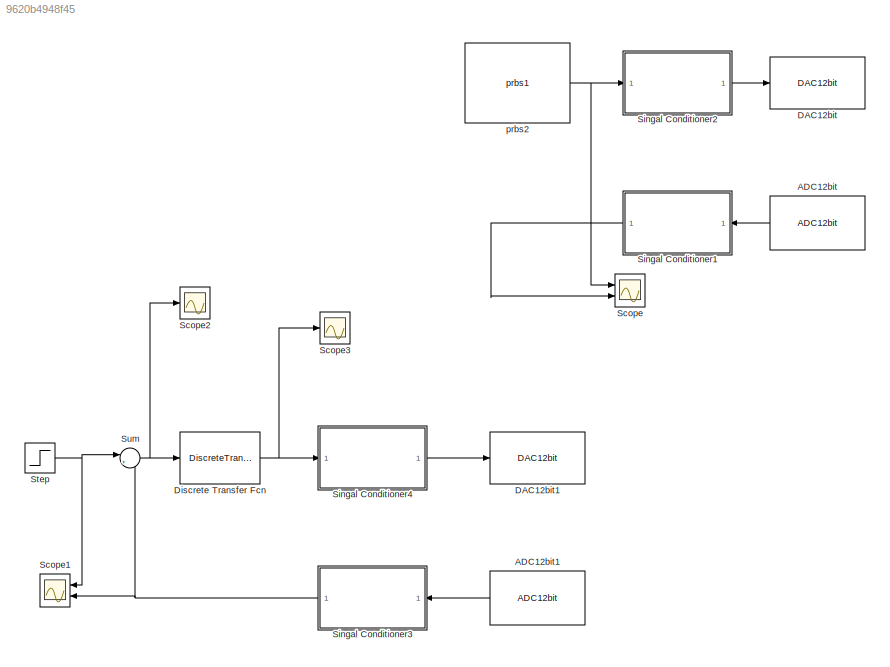
MODEL slx_9620b4948f45
KIND model
CONFIG AbsTol = 1e-8
CONFIG EnableMultiTasking = on
CONFIG FixedStep = Ts
CONFIG MaxStep = auto
CONFIG MinStep = auto
CONFIG RelTol = 1e-8
CONFIG SampleTimeConstraint = Unconstrained
CONFIG Solver = FixedStepAuto
CONFIG SolverName = FixedStepAuto
CONFIG StartTime = 0.0
CONFIG StopTime = 50
BLOCK [Reference] ADC12bit  REF=EEE481Arduino/ADC12bit
  Commented = on
  Ports = [0, 1]
  SourceBlock = EEE481Arduino/ADC12bit
  SourceProductName = EEE 481 Arduino
BLOCK [Reference] ADC12bit1  REF=EEE481Arduino/ADC12bit
  Ports = [0, 1]
  SourceBlock = EEE481Arduino/ADC12bit
  SourceProductName = EEE 481 Arduino
BLOCK [Reference] DAC12bit  REF=EEE481Arduino/DAC12bit
  Commented = on
  Ports = [1]
  SourceBlock = EEE481Arduino/DAC12bit
  SourceProductName = EEE 481 Arduino
BLOCK [Reference] DAC12bit1  REF=EEE481Arduino/DAC12bit
  Ports = [1]
  SourceBlock = EEE481Arduino/DAC12bit
  SourceProductName = EEE 481 Arduino
BLOCK [DiscreteTransferFcn] Discrete Transfer Fcn
  Denominator = [1 -1 0]
  InputPortMap = u0
  Numerator = [36680 -71510 34850]
  Ports = [1, 1]
BLOCK [Scope] Scope
  Commented = on
  Floating = off
  NumInputPorts = 2
  Ports = [2]
  ScopeSpecificationString = Simulink.scopes.TimeScopeBlockCfg('CurrentConfiguration', extmgr.ConfigurationSet(extmgr.Configuration('Core','General UI',true),extmgr.Configuration('Core','Source UI',true),extmgr.Configuration('Sources','WiredSimulink',true,'DataLogging',true,'DataLoggingSaveFormat','StructureWithTime'),extmgr.Configuration('Visuals','Time Domain',true,'SerializedDisplays',{struct('MinYLimReal','-318.75','MaxYL...<+1450ch>
BLOCK [Scope] Scope1
  Floating = off
  NumInputPorts = 2
  Ports = [2]
  ScopeSpecificationString = Simulink.scopes.TimeScopeBlockCfg('CurrentConfiguration', extmgr.ConfigurationSet(extmgr.Configuration('Core','General UI',true),extmgr.Configuration('Core','Source UI',true),extmgr.Configuration('Sources','WiredSimulink',true,'DataLoggingVariableName','ScopeData1'),extmgr.Configuration('Visuals','Time Domain',true,'SerializedDisplays',{struct('MinYLimReal','0.08399','MaxYLimReal','0.65834','YLabe...<+1454ch>
BLOCK [Scope] Scope2
  Floating = off
  NumInputPorts = 1
  Ports = [1]
  ScopeSpecificationString = Simulink.scopes.TimeScopeBlockCfg('CurrentConfiguration', extmgr.ConfigurationSet(extmgr.Configuration('Core','General UI',true),extmgr.Configuration('Core','Source UI',true),extmgr.Configuration('Sources','WiredSimulink',true,'DataLoggingVariableName','ScopeData2'),extmgr.Configuration('Visuals','Time Domain',true,'SerializedDisplays',{struct('MinYLimReal','-0.55089','MaxYLimReal','1.95347','YLab...<+1389ch>
BLOCK [Scope] Scope3
  Floating = off
  NumInputPorts = 1
  Ports = [1]
  ScopeSpecificationString = Simulink.scopes.TimeScopeBlockCfg('CurrentConfiguration', extmgr.ConfigurationSet(extmgr.Configuration('Core','General UI',true),extmgr.Configuration('Core','Source UI',true),extmgr.Configuration('Sources','WiredSimulink',true,'DataLoggingVariableName','ScopeData3'),extmgr.Configuration('Visuals','Time Domain',true,'SerializedDisplays',{struct('MinYLimReal','-8097.21696','MaxYLimReal','23752.29013...<+1452ch>
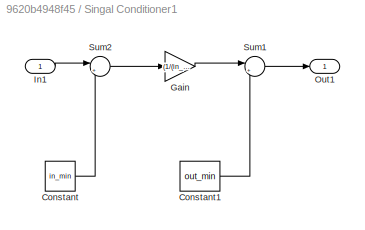
BLOCK [SubSystem] Singal Conditioner1
  Commented = on
  Ports = [1, 1]
  RequestExecContextInheritance = off
BLOCK [Constant] Singal Conditioner1/Constant
  Value = in_min
BLOCK [Constant] Singal Conditioner1/Constant1
  Value = out_min
BLOCK [Gain] Singal Conditioner1/Gain
  Gain = (1/(in_max-in_min))*(out_max-out_min)
  OutDataTypeStr = Inherit: Inherit via internal rule
  ParamDataTypeStr = Inherit: Inherit via internal rule
  SaturateOnIntegerOverflow = off
BLOCK [Inport] Singal Conditioner1/In1
  IconDisplay = Port number
BLOCK [Outport] Singal Conditioner1/Out1
  IconDisplay = Port number
BLOCK [Sum] Singal Conditioner1/Sum1
  IconShape = round
  InputSameDT = off
  Inputs = |++
  OutDataTypeStr = Inherit: Inherit via internal rule
  Ports = [2, 1]
  SaturateOnIntegerOverflow = off
BLOCK [Sum] Singal Conditioner1/Sum2
  IconShape = round
  InputSameDT = off
  Inputs = |+-
  OutDataTypeStr = Inherit: Inherit via internal rule
  Ports = [2, 1]
  SaturateOnIntegerOverflow = off
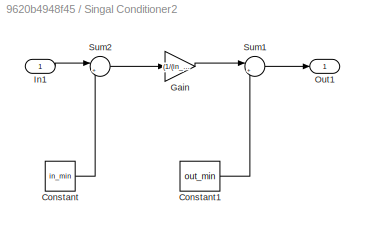
BLOCK [SubSystem] Singal Conditioner2
  Commented = on
  Ports = [1, 1]
  RequestExecContextInheritance = off
BLOCK [Constant] Singal Conditioner2/Constant
  Value = in_min
BLOCK [Constant] Singal Conditioner2/Constant1
  Value = out_min
BLOCK [Gain] Singal Conditioner2/Gain
  Gain = (1/(in_max-in_min))*(out_max-out_min)
  OutDataTypeStr = Inherit: Inherit via internal rule
  ParamDataTypeStr = Inherit: Inherit via internal rule
  SaturateOnIntegerOverflow = off
BLOCK [Inport] Singal Conditioner2/In1
  IconDisplay = Port number
BLOCK [Outport] Singal Conditioner2/Out1
  IconDisplay = Port number
BLOCK [Sum] Singal Conditioner2/Sum1
  IconShape = round
  InputSameDT = off
  Inputs = |++
  OutDataTypeStr = Inherit: Inherit via internal rule
  Ports = [2, 1]
  SaturateOnIntegerOverflow = off
BLOCK [Sum] Singal Conditioner2/Sum2
  IconShape = round
  InputSameDT = off
  Inputs = |+-
  OutDataTypeStr = Inherit: Inherit via internal rule
  Ports = [2, 1]
  SaturateOnIntegerOverflow = off
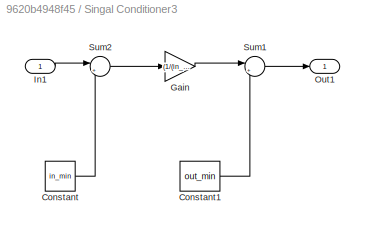
BLOCK [SubSystem] Singal Conditioner3
  Ports = [1, 1]
  RequestExecContextInheritance = off
BLOCK [Constant] Singal Conditioner3/Constant
  Value = in_min
BLOCK [Constant] Singal Conditioner3/Constant1
  Value = out_min
BLOCK [Gain] Singal Conditioner3/Gain
  Gain = (1/(in_max-in_min))*(out_max-out_min)
  OutDataTypeStr = Inherit: Inherit via internal rule
  ParamDataTypeStr = Inherit: Inherit via internal rule
  SaturateOnIntegerOverflow = off
BLOCK [Inport] Singal Conditioner3/In1
  IconDisplay = Port number
BLOCK [Outport] Singal Conditioner3/Out1
  IconDisplay = Port number
BLOCK [Sum] Singal Conditioner3/Sum1
  IconShape = round
  InputSameDT = off
  Inputs = |++
  OutDataTypeStr = Inherit: Inherit via internal rule
  Ports = [2, 1]
  SaturateOnIntegerOverflow = off
BLOCK [Sum] Singal Conditioner3/Sum2
  IconShape = round
  InputSameDT = off
  Inputs = |+-
  OutDataTypeStr = Inherit: Inherit via internal rule
  Ports = [2, 1]
  SaturateOnIntegerOverflow = off
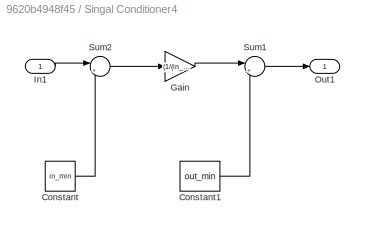
BLOCK [SubSystem] Singal Conditioner4
  Ports = [1, 1]
  RequestExecContextInheritance = off
BLOCK [Constant] Singal Conditioner4/Constant
  Value = in_min
BLOCK [Constant] Singal Conditioner4/Constant1
  Value = out_min
BLOCK [Gain] Singal Conditioner4/Gain
  Gain = (1/(in_max-in_min))*(out_max-out_min)
  OutDataTypeStr = Inherit: Inherit via internal rule
  ParamDataTypeStr = Inherit: Inherit via internal rule
  SaturateOnIntegerOverflow = off
BLOCK [Inport] Singal Conditioner4/In1
  IconDisplay = Port number
BLOCK [Outport] Singal Conditioner4/Out1
  IconDisplay = Port number
BLOCK [Sum] Singal Conditioner4/Sum1
  IconShape = round
  InputSameDT = off
  Inputs = |++
  OutDataTypeStr = Inherit: Inherit via internal rule
  Ports = [2, 1]
  SaturateOnIntegerOverflow = off
BLOCK [Sum] Singal Conditioner4/Sum2
  IconShape = round
  InputSameDT = off
  Inputs = |+-
  OutDataTypeStr = Inherit: Inherit via internal rule
  Ports = [2, 1]
  SaturateOnIntegerOverflow = off
BLOCK [Step] Step
  After = pi/6
  SampleTime = Ts
  Time = 25
BLOCK [Sum] Sum
  IconShape = round
  InputSameDT = off
  Inputs = |+-
  OutDataTypeStr = Inherit: Inherit via internal rule
  Ports = [2, 1]
  SaturateOnIntegerOverflow = off
BLOCK [Reference] prbs2  REF=EEE481Arduino/prbs1
  Commented = on
  Ports = [0, 1]
  SourceBlock = EEE481Arduino/prbs1
  SourceProductName = EEE 481 Arduino
LINE ADC12bit1:1 -> Singal Conditioner3:1
LINE ADC12bit:1 -> Singal Conditioner1:1
NET Discrete Transfer Fcn:1 -> Scope3:1, Singal Conditioner4:1
LINE Singal Conditioner1/Constant1:1 -> Singal Conditioner1/Sum1:2
LINE Singal Conditioner1/Constant:1 -> Singal Conditioner1/Sum2:2
LINE Singal Conditioner1/Gain:1 -> Singal Conditioner1/Sum1:1
LINE Singal Conditioner1/In1:1 -> Singal Conditioner1/Sum2:1
LINE Singal Conditioner1/Sum1:1 -> Singal Conditioner1/Out1:1
LINE Singal Conditioner1/Sum2:1 -> Singal Conditioner1/Gain:1
LINE Singal Conditioner1:1 -> Scope:2
LINE Singal Conditioner2/Constant1:1 -> Singal Conditioner2/Sum1:2
LINE Singal Conditioner2/Constant:1 -> Singal Conditioner2/Sum2:2
LINE Singal Conditioner2/Gain:1 -> Singal Conditioner2/Sum1:1
LINE Singal Conditioner2/In1:1 -> Singal Conditioner2/Sum2:1
LINE Singal Conditioner2/Sum1:1 -> Singal Conditioner2/Out1:1
LINE Singal Conditioner2/Sum2:1 -> Singal Conditioner2/Gain:1
LINE Singal Conditioner2:1 -> DAC12bit:1
LINE Singal Conditioner3/Constant1:1 -> Singal Conditioner3/Sum1:2
LINE Singal Conditioner3/Constant:1 -> Singal Conditioner3/Sum2:2
LINE Singal Conditioner3/Gain:1 -> Singal Conditioner3/Sum1:1
LINE Singal Conditioner3/In1:1 -> Singal Conditioner3/Sum2:1
LINE Singal Conditioner3/Sum1:1 -> Singal Conditioner3/Out1:1
LINE Singal Conditioner3/Sum2:1 -> Singal Conditioner3/Gain:1
NET Singal Conditioner3:1 -> Scope1:2, Sum:2
LINE Singal Conditioner4/Constant1:1 -> Singal Conditioner4/Sum1:2
LINE Singal Conditioner4/Constant:1 -> Singal Conditioner4/Sum2:2
LINE Singal Conditioner4/Gain:1 -> Singal Conditioner4/Sum1:1
LINE Singal Conditioner4/In1:1 -> Singal Conditioner4/Sum2:1
LINE Singal Conditioner4/Sum1:1 -> Singal Conditioner4/Out1:1
LINE Singal Conditioner4/Sum2:1 -> Singal Conditioner4/Gain:1
LINE Singal Conditioner4:1 -> DAC12bit1:1
NET Step:1 -> Scope1:1, Sum:1
NET Sum:1 -> Discrete Transfer Fcn:1, Scope2:1
NET prbs2:1 -> Scope:1, Singal Conditioner2:1
note: NET lines group one-source signal fan-out (src -> all destinations, sorted); 1:1 wires keep LINE
